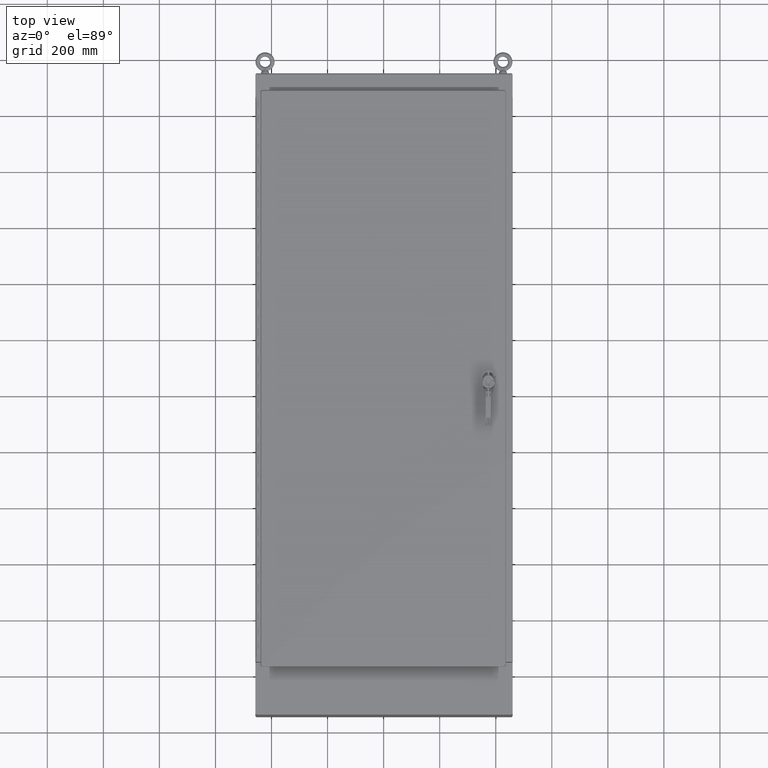
[diagram: clean part render]
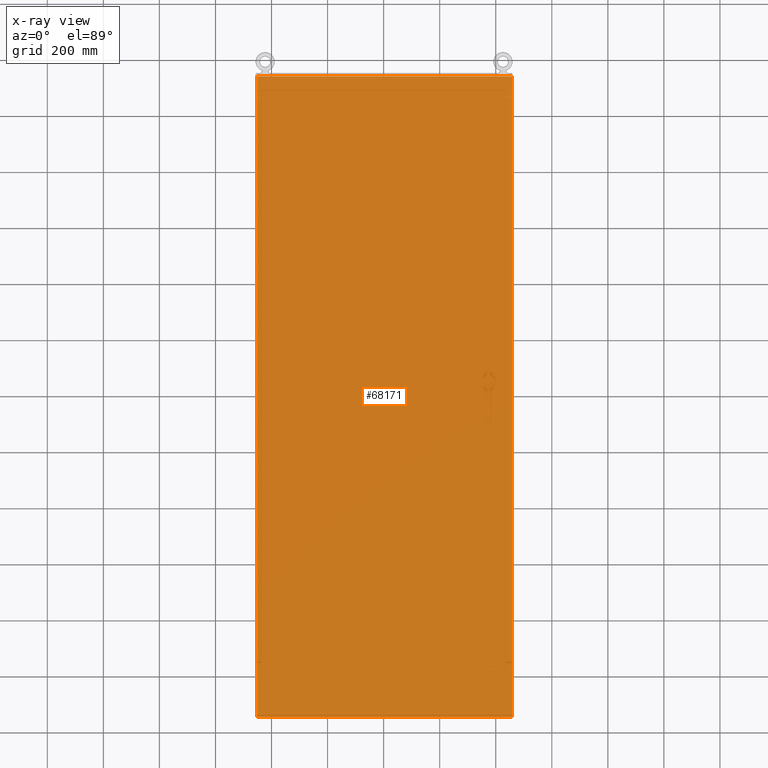
[diagram: x-ray — body ghosted, one internal face saturated and labeled with its STEP entity id]
A machine part, top view, then the same camera in x-ray: the body is ghosted and one INTERNAL B-rep face — a face not visible from any outside direction — is saturated and labeled: STEP entity #68171.
In plain terms, the highlighted planar face has unit normal (0, 0, 1).
Its self-contained STEP definition (entity closure, byte-faithful):
#9226=PLANE('',#72012);
#10413=FACE_OUTER_BOUND('',#13387,.T.);
#13387=EDGE_LOOP('',(#50669,#50670,#50671,#50672));
#20093=LINE('',#96460,#25340);
#20096=LINE('',#96466,#25343);
#20099=LINE('',#96473,#25346);
#20101=LINE('',#96476,#25348);
#25340=VECTOR('',#78484,0.393700787401575);
#25343=VECTOR('',#78489,0.393700787401575);
#25346=VECTOR('',#78496,0.393700787401575);
#25348=VECTOR('',#78500,0.393700787401575);
#30566=VERTEX_POINT('',#96451);
#30567=VERTEX_POINT('',#96455);
#30569=VERTEX_POINT('',#96464);
#30571=VERTEX_POINT('',#96472);
#39852=EDGE_CURVE('',#30566,#30567,#20093,.T.);
#39855=EDGE_CURVE('',#30569,#30567,#20096,.T.);
#39858=EDGE_CURVE('',#30571,#30569,#20099,.T.);
#39860=EDGE_CURVE('',#30566,#30571,#20101,.T.);
#50669=ORIENTED_EDGE('',*,*,#39852,.T.);
#50670=ORIENTED_EDGE('',*,*,#39855,.F.);
#50671=ORIENTED_EDGE('',*,*,#39858,.F.);
#50672=ORIENTED_EDGE('',*,*,#39860,.F.);
#68171=ADVANCED_FACE('',(#10413),#9226,.T.);
#72012=AXIS2_PLACEMENT_3D('',#96477,#78501,#78502);
#78484=DIRECTION('',(-6.22221013937788E-17,-1.,0.));
#78489=DIRECTION('',(-1.,4.65963578831049E-16,0.));
#78496=DIRECTION('',(-1.86666304181337E-16,-1.,0.));
#78500=DIRECTION('',(1.,-3.10642385887366E-16,0.));
#78501=DIRECTION('center_axis',(0.,0.,1.));
#78502=DIRECTION('ref_axis',(1.,0.,0.));
#96451=CARTESIAN_POINT('',(-17.765875,44.9585,0.104));
#96455=CARTESIAN_POINT('',(-17.765875,-44.9585,0.104));
#96460=CARTESIAN_POINT('',(-17.765875,-22.47925,0.104));
#96464=CARTESIAN_POINT('',(18.0105,-44.9585,0.104));
#96466=CARTESIAN_POINT('',(18.0105,-44.9585,0.104));
#96472=CARTESIAN_POINT('',(18.0105,44.9585,0.104));
#96473=CARTESIAN_POINT('',(18.0105,44.9585,0.104));
#96476=CARTESIAN_POINT('',(-18.0105,44.9585,0.104));
#96477=CARTESIAN_POINT('Origin',(4.19611851826831E-15,-8.6077155595652E-15,
0.104));